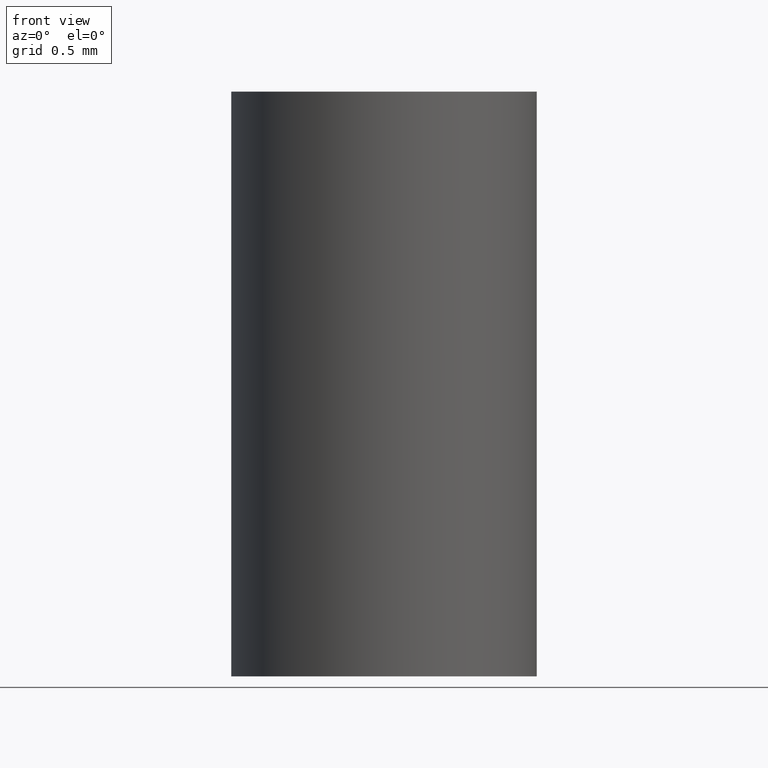
[diagram: clean part render]
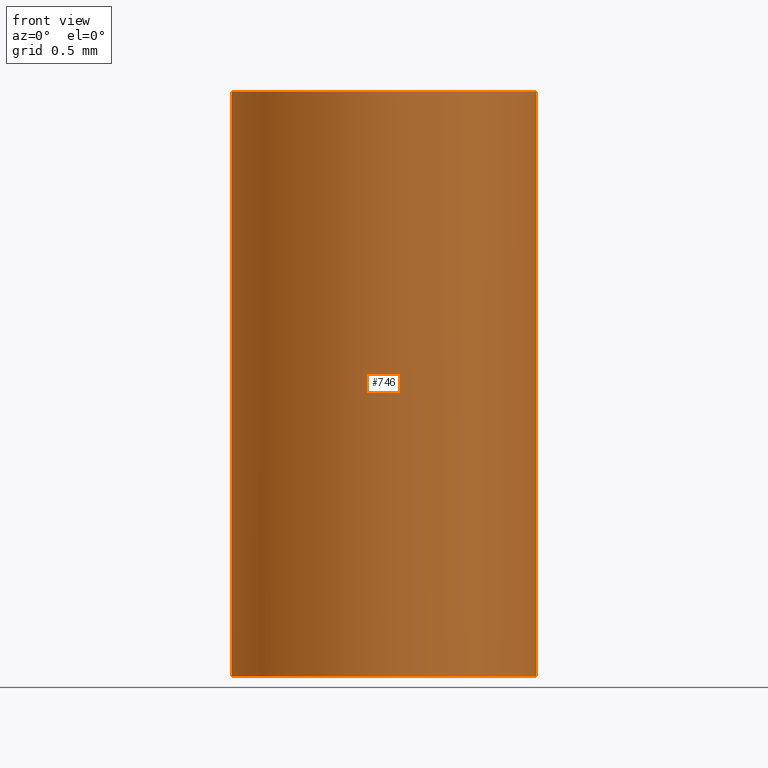
[diagram: same view with one face highlighted and labeled with its STEP entity id]
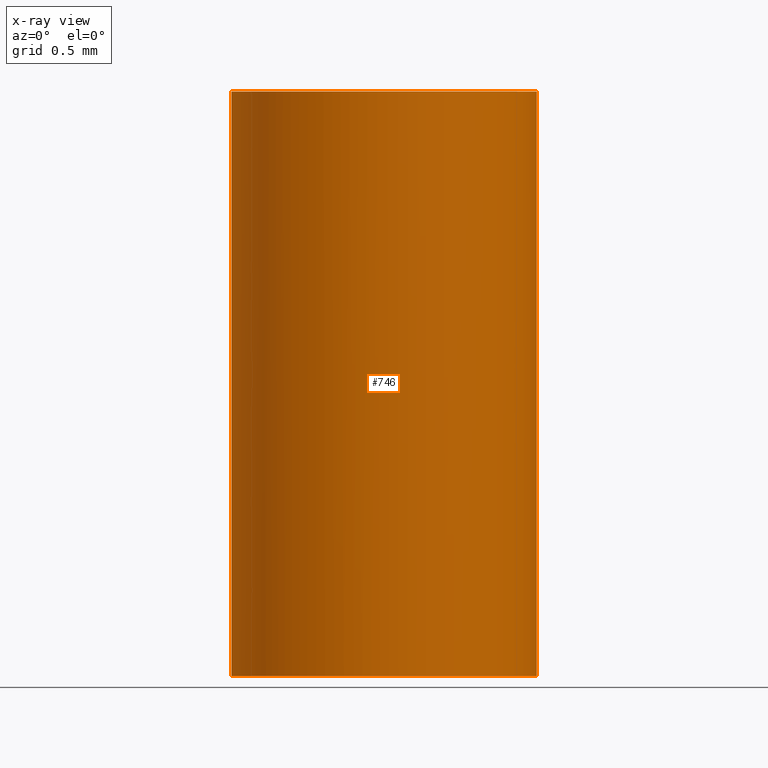
[diagram: x-ray of the same camera — body ghosted, the highlighted face saturated]
A machine part, front view. The second image highlights one B-rep face of the part: STEP entity #746.
The next image is the same camera in x-ray: the body ghosted, the highlighted face saturated — about 0% of this face is hidden behind the body in this view.
In plain terms, the highlighted face is a freeform B-spline surface patch.
Its self-contained STEP definition (entity closure, byte-faithful):
#1 = CARTESIAN_POINT ( 'NONE',  ( 0.7583970038580116800, 0.4609754946678218400, 0.0000000000000000000 ) ) ;
#3 = EDGE_LOOP ( 'NONE', ( #492, #619, #882, #572 ) ) ;
#7 = CARTESIAN_POINT ( 'NONE',  ( -0.6763096916565426400, 0.5049967104586130500, 0.0000000000000000000 ) ) ;
#10 = CARTESIAN_POINT ( 'NONE',  ( -0.7026761214641372700, -0.6447131296553072500, 0.0000000000000000000 ) ) ;
#13 = CARTESIAN_POINT ( 'NONE',  ( -1.097127492715755300, -0.1587014415089026400, 0.0000000000000000000 ) ) ;
#17 = CARTESIAN_POINT ( 'NONE',  ( -0.7716038316118147800, -0.2815893733691927600, 0.0000000000000000000 ) ) ;
#26 = CARTESIAN_POINT ( 'NONE',  ( 0.3164986882359646100, -1.021436466767802600, 0.0000000000000000000 ) ) ;
#33 = CARTESIAN_POINT ( 'NONE',  ( 0.8877360307185315800, -0.1708958883058093700, 4.000000000000000000 ) ) ;
#36 = CARTESIAN_POINT ( 'NONE',  ( 0.8560203802046704200, 0.2565611475397826500, 4.000000000000000000 ) ) ;
#39 = CARTESIAN_POINT ( 'NONE',  ( 0.1515911142503182100, 0.9979109798834902000, 4.000000000000000000 ) ) ;
#43 = CARTESIAN_POINT ( 'NONE',  ( -0.8479840170974072300, -0.4495258677046951600, 4.000000000000000000 ) ) ;
#47 = CARTESIAN_POINT ( 'NONE',  ( -0.3292590890496382400, -0.5555671395518986300, 4.000000000000000000 ) ) ;
#49 = CARTESIAN_POINT ( 'NONE',  ( 0.5540426067905855900, -0.2980894388483326700, 0.0000000000000000000 ) ) ;
#52 = CARTESIAN_POINT ( 'NONE',  ( 0.7463509298310556600, 0.1156326890998082600, 4.000000000000000000 ) ) ;
#55 = CARTESIAN_POINT ( 'NONE',  ( -0.3701418553615222800, 0.7701081889398881900, 0.0000000000000000000 ) ) ;
#60 = CARTESIAN_POINT ( 'NONE',  ( -0.9701425294174590400, -0.005891124174933593000, 4.000000000000000000 ) ) ;
#61 = VERTEX_POINT ( 'NONE', #518 ) ;
#63 = CARTESIAN_POINT ( 'NONE',  ( 0.7583970038580116800, 0.4609754946678218400, 0.0000000000000000000 ) ) ;
#66 = CARTESIAN_POINT ( 'NONE',  ( -0.7350859085189543900, 0.6581861294657855900, 4.000000000000000000 ) ) ;
#68 = CARTESIAN_POINT ( 'NONE',  ( 0.7953061832709268400, 0.6480272480098289200, 4.000000000000000000 ) ) ;
#72 = CARTESIAN_POINT ( 'NONE',  ( 0.7953061832709268400, 0.6480272480098289200, 0.0000000000000000000 ) ) ;
#76 = CARTESIAN_POINT ( 'NONE',  ( 0.8560203802046704200, 0.2565611475397826500, 0.0000000000000000000 ) ) ;
#79 = CARTESIAN_POINT ( 'NONE',  ( 0.2476394591388616500, 0.8350266087884887800, 0.0000000000000000000 ) ) ;
#83 = CARTESIAN_POINT ( 'NONE',  ( -0.9701425294174590400, -0.005891124174933593000, 0.0000000000000000000 ) ) ;
#89 = CARTESIAN_POINT ( 'NONE',  ( -0.5465353381415623000, -0.5991630616646980200, 0.0000000000000000000 ) ) ;
#93 = CARTESIAN_POINT ( 'NONE',  ( -1.055736966780583600, 0.3707400833624573400, 0.0000000000000000000 ) ) ;
#96 = CARTESIAN_POINT ( 'NONE',  ( -1.015980769229922100, -0.4278905353636624500, 0.0000000000000000000 ) ) ;
#104 = CARTESIAN_POINT ( 'NONE',  ( -8.792005455195680700E-017, 1.113750000000000200, 4.000000000000000000 ) ) ;
#107 = CARTESIAN_POINT ( 'NONE',  ( 1.040978732487718900, -0.05482816004497868100, 0.0000000000000000000 ) ) ;
#109 = CARTESIAN_POINT ( 'NONE',  ( -0.8237883917574385700, -0.07846189655459263900, 4.000000000000000000 ) ) ;
#113 = CARTESIAN_POINT ( 'NONE',  ( -0.3292590890496430700, -0.5555671395518961800, 0.0000000000000000000 ) ) ;
#115 = CARTESIAN_POINT ( 'NONE',  ( -0.08614373521911816700, -0.9331302622349195700, 4.000000000000000000 ) ) ;
#120 = CARTESIAN_POINT ( 'NONE',  ( 0.8214754130370506300, -0.3919078862407278100, 4.000000000000000000 ) ) ;
#122 = CARTESIAN_POINT ( 'NONE',  ( -0.6763096916565426400, 0.5049967104586130500, 4.000000000000000000 ) ) ;
#128 = CARTESIAN_POINT ( 'NONE',  ( -0.3641254467813354000, 0.6116123470259144900, 4.000000000000000000 ) ) ;
#131 = CARTESIAN_POINT ( 'NONE',  ( -0.6885090739393742200, 0.02926466359169566400, 0.0000000000000000000 ) ) ;
#134 = CARTESIAN_POINT ( 'NONE',  ( 0.6444524397320201500, -0.4246592132029523600, 4.000000000000000000 ) ) ;
#136 = CARTESIAN_POINT ( 'NONE',  ( -0.3701418553615222800, 0.7701081889398881900, 4.000000000000000000 ) ) ;
#139 = CARTESIAN_POINT ( 'NONE',  ( 0.6444524397320201500, -0.4246592132029523600, 0.0000000000000000000 ) ) ;
#141 = CARTESIAN_POINT ( 'NONE',  ( 0.7461275854452953400, -0.7514483640741634900, 4.000000000000000000 ) ) ;
#143 = CARTESIAN_POINT ( 'NONE',  ( 0.1515911142503182100, 0.9979109798834902000, 0.0000000000000000000 ) ) ;
#146 = CARTESIAN_POINT ( 'NONE',  ( 0.04893478115581038200, -1.074370110122631700, 4.000000000000000000 ) ) ;
#148 = CARTESIAN_POINT ( 'NONE',  ( -0.9701425294174590400, -0.005891124174933593000, 0.0000000000000000000 ) ) ;
#151 = CARTESIAN_POINT ( 'NONE',  ( 0.7461275854452953400, -0.7514483640741634900, 0.0000000000000000000 ) ) ;
#154 = CARTESIAN_POINT ( 'NONE',  ( -1.055736966780583600, 0.3707400833624573400, 4.000000000000000000 ) ) ;
#158 = CARTESIAN_POINT ( 'NONE',  ( 0.8877360307185315800, -0.1708958883058093700, 0.0000000000000000000 ) ) ;
#166 = CARTESIAN_POINT ( 'NONE',  ( 0.1515911142503182100, 0.9979109798834902000, 0.0000000000000000000 ) ) ;
#175 = CARTESIAN_POINT ( 'NONE',  ( -0.5411376863129864200, 0.9982318544924089200, 0.0000000000000000000 ) ) ;
#183 = CARTESIAN_POINT ( 'NONE',  ( 0.04893478115581038200, -1.074370110122631700, 0.0000000000000000000 ) ) ;
#190 = CARTESIAN_POINT ( 'NONE',  ( -0.04014132327632603100, 0.7210765924086439700, 4.000000000000000000 ) ) ;
#194 = CARTESIAN_POINT ( 'NONE',  ( -0.9462143018426538700, 0.2404875558488977200, 4.000000000000000000 ) ) ;
#197 = CARTESIAN_POINT ( 'NONE',  ( -0.5487157140505032300, 0.8274169232728193500, 4.000000000000000000 ) ) ;
#199 = CARTESIAN_POINT ( 'NONE',  ( 0.5206215739320180200, -0.5780289262034081800, 0.0000000000000000000 ) ) ;
#201 = CARTESIAN_POINT ( 'NONE',  ( -0.5022434138371598700, 0.4956916835127473900, 4.000000000000000000 ) ) ;
#206 = CARTESIAN_POINT ( 'NONE',  ( -0.2551459781043309800, -0.6110777091375364500, 0.0000000000000000000 ) ) ;
#209 = CARTESIAN_POINT ( 'NONE',  ( -0.1651252646156073900, 0.8445884064315375400, 0.0000000000000000000 ) ) ;
#212 = CARTESIAN_POINT ( 'NONE',  ( -0.7026761214641372700, -0.6447131296553072500, 0.0000000000000000000 ) ) ;
#215 = CARTESIAN_POINT ( 'NONE',  ( -0.6957925316497993700, -0.8416470683276798800, 4.000000000000000000 ) ) ;
#216 = CARTESIAN_POINT ( 'NONE',  ( 0.7583970038580116800, 0.4609754946678218400, 4.000000000000000000 ) ) ;
#218 = CARTESIAN_POINT ( 'NONE',  ( 0.9062453287998693000, -0.5358558011870280200, 4.000000000000000000 ) ) ;
#220 = CARTESIAN_POINT ( 'NONE',  ( 0.4534072424004326200, 0.7508287515906255600, 0.0000000000000000000 ) ) ;
#225 = CARTESIAN_POINT ( 'NONE',  ( -0.002504007415632577800, -0.7944502543498097600, 0.0000000000000000000 ) ) ;
#227 = CARTESIAN_POINT ( 'NONE',  ( 0.7463509298310556600, 0.1156326890998082600, 0.0000000000000000000 ) ) ;
#230 = CARTESIAN_POINT ( 'NONE',  ( 0.8214754130370506300, -0.3919078862407278100, 0.0000000000000000000 ) ) ;
#234 = CARTESIAN_POINT ( 'NONE',  ( -0.9462143018426538700, 0.2404875558488977200, 0.0000000000000000000 ) ) ;
#237 = LINE ( 'NONE', #842, #848 ) ;
#239 = CARTESIAN_POINT ( 'NONE',  ( -0.2733553764012233700, 1.108398437500000000, 0.0000000000000000000 ) ) ;
#251 = CARTESIAN_POINT ( 'NONE',  ( 0.7583970038580116800, 0.4609754946678218400, 4.000000000000000000 ) ) ;
#255 = CARTESIAN_POINT ( 'NONE',  ( -0.002504007415632577800, -0.7944502543498097600, 4.000000000000000000 ) ) ;
#259 = CARTESIAN_POINT ( 'NONE',  ( 0.6053515625000001100, -0.1472621556370214400, 0.0000000000000000000 ) ) ;
#262 = CARTESIAN_POINT ( 'NONE',  ( -0.6647365660968040900, 0.2037691985282647500, 4.000000000000000000 ) ) ;
#265 = CARTESIAN_POINT ( 'NONE',  ( 0.4649290388188955200, 0.5740682996103484400, 4.000000000000000000 ) ) ;
#267 = CARTESIAN_POINT ( 'NONE',  ( 0.7574919616994796300, -0.07696451459410308400, 0.0000000000000000000 ) ) ;
#271 = CARTESIAN_POINT ( 'NONE',  ( 0.5996260640963244600, 0.4418892364270827800, 4.000000000000000000 ) ) ;
#274 = CARTESIAN_POINT ( 'NONE',  ( -0.04014132327632603100, 0.7210765924086439700, 0.0000000000000000000 ) ) ;
#277 = CARTESIAN_POINT ( 'NONE',  ( 0.1964170562244020600, -0.7634559969889722600, 4.000000000000000000 ) ) ;
#281 = CARTESIAN_POINT ( 'NONE',  ( -0.09191382790632680900, -0.6495980602815881700, 4.000000000000000000 ) ) ;
#284 = CARTESIAN_POINT ( 'NONE',  ( 0.4534072424004326200, 0.7508287515906255600, 4.000000000000000000 ) ) ;
#286 = CARTESIAN_POINT ( 'NONE',  ( -0.3207884171766604600, -0.8870097967582880600, 4.000000000000000000 ) ) ;
#288 = CARTESIAN_POINT ( 'NONE',  ( 0.2476394591388616500, 0.8350266087884887800, 4.000000000000000000 ) ) ;
#291 = CARTESIAN_POINT ( 'NONE',  ( 0.9062453287998693000, -0.5358558011870280200, 0.0000000000000000000 ) ) ;
#294 = VERTEX_POINT ( 'NONE', #601 ) ;
#297 = CARTESIAN_POINT ( 'NONE',  ( 0.8214754130370506300, -0.3919078862407278100, 4.000000000000000000 ) ) ;
#299 = CARTESIAN_POINT ( 'NONE',  ( 0.3164986882359646100, -1.021436466767802600, 4.000000000000000000 ) ) ;
#300 = CARTESIAN_POINT ( 'NONE',  ( 0.6444524397320201500, -0.4246592132029523600, 0.0000000000000000000 ) ) ;
#303 = CARTESIAN_POINT ( 'NONE',  ( -0.5170757843521486300, -0.4301428041326466600, 0.0000000000000000000 ) ) ;
#308 = CARTESIAN_POINT ( 'NONE',  ( 0.5529130164652292800, -0.7360235482121024700, 0.0000000000000000000 ) ) ;
#310 = VERTEX_POINT ( 'NONE', #737 ) ;
#313 = CARTESIAN_POINT ( 'NONE',  ( 0.3517373573016431300, -0.8573565002161743800, 0.0000000000000000000 ) ) ;
#317 = CARTESIAN_POINT ( 'NONE',  ( -0.5411376863129864200, 0.9982318544924089200, 0.0000000000000000000 ) ) ;
#323 = CARTESIAN_POINT ( 'NONE',  ( 1.015144248699343600, 0.2082520348093352400, 0.0000000000000000000 ) ) ;
#329 = CARTESIAN_POINT ( 'NONE',  ( -8.792005455195680700E-017, 1.113750000000000200, 0.0000000000000000000 ) ) ;
#331 = CARTESIAN_POINT ( 'NONE',  ( -0.5022434138371598700, 0.4956916835127473900, 4.000000000000000000 ) ) ;
#335 = CARTESIAN_POINT ( 'NONE',  ( 0.7953061832709268400, 0.6480272480098289200, 0.0000000000000000000 ) ) ;
#337 = DIRECTION ( 'NONE',  ( 0.0000000000000000000, 0.0000000000000000000, 1.000000000000000000 ) ) ;
#341 = CARTESIAN_POINT ( 'NONE',  ( -0.3207884171766604600, -0.8870097967582880600, 4.000000000000000000 ) ) ;
#343 = CARTESIAN_POINT ( 'NONE',  ( -0.5465353381415623000, -0.5991630616646980200, 4.000000000000000000 ) ) ;
#346 = CARTESIAN_POINT ( 'NONE',  ( -0.1043505306542801300, 0.9977809587104833300, 4.000000000000000000 ) ) ;
#350 = CARTESIAN_POINT ( 'NONE',  ( 0.7463509298310556600, 0.1156326890998082600, 0.0000000000000000000 ) ) ;
#353 = CARTESIAN_POINT ( 'NONE',  ( 0.3588902211760598400, -0.5293446452838803700, 0.0000000000000000000 ) ) ;
#355 = CARTESIAN_POINT ( 'NONE',  ( 0.2158289345323387000, -0.6085331308910280100, 4.000000000000000000 ) ) ;
#359 = CARTESIAN_POINT ( 'NONE',  ( -0.002504007415632577800, -0.7944502543498097600, 0.0000000000000000000 ) ) ;
#362 = CARTESIAN_POINT ( 'NONE',  ( -0.9331965472929604200, 0.6284452996950649100, 4.000000000000000000 ) ) ;
#363 = CARTESIAN_POINT ( 'NONE',  ( 0.1442367610942328100, 0.7139045705999829100, 0.0000000000000000000 ) ) ;
#365 = CARTESIAN_POINT ( 'NONE',  ( 0.5529130164652292800, -0.7360235482121024700, 0.0000000000000000000 ) ) ;
#370 = CARTESIAN_POINT ( 'NONE',  ( -0.3207884171766604600, -0.8870097967582880600, 0.0000000000000000000 ) ) ;
#372 = CARTESIAN_POINT ( 'NONE',  ( 0.04893478115581038200, -1.074370110122631700, 0.0000000000000000000 ) ) ;
#375 = CARTESIAN_POINT ( 'NONE',  ( -0.8479840170974072300, -0.4495258677046951600, 0.0000000000000000000 ) ) ;
#377 = CARTESIAN_POINT ( 'NONE',  ( -0.3701418553615222800, 0.7701081889398881900, 0.0000000000000000000 ) ) ;
#381 = CARTESIAN_POINT ( 'NONE',  ( 0.5206215739320180200, -0.5780289262034081800, 0.0000000000000000000 ) ) ;
#385 = CARTESIAN_POINT ( 'NONE',  ( -0.08614373521911816700, -0.9331302622349195700, 0.0000000000000000000 ) ) ;
#388 = CARTESIAN_POINT ( 'NONE',  ( -0.5487157140505032300, 0.8274169232728193500, 0.0000000000000000000 ) ) ;
#392 = CARTESIAN_POINT ( 'NONE',  ( -0.5411376863129864200, 0.9982318544924089200, 4.000000000000000000 ) ) ;
#400 = CARTESIAN_POINT ( 'NONE',  ( -0.2733553764012233700, 1.108398437500000000, 0.0000000000000000000 ) ) ;
#407 = CARTESIAN_POINT ( 'NONE',  ( -0.7350859085189543900, 0.6581861294657855900, 4.000000000000000000 ) ) ;
#410 = CARTESIAN_POINT ( 'NONE',  ( -0.3748935673231771300, -0.7122053194596226200, 4.000000000000000000 ) ) ;
#414 = CARTESIAN_POINT ( 'NONE',  ( -0.7026761214641372700, -0.6447131296553072500, 4.000000000000000000 ) ) ;
#420 = CARTESIAN_POINT ( 'NONE',  ( -0.5170757843521486300, -0.4301428041326466600, 4.000000000000000000 ) ) ;
#422 = CARTESIAN_POINT ( 'NONE',  ( -0.3748935673231771300, -0.7122053194596226200, 4.000000000000000000 ) ) ;
#425 = CARTESIAN_POINT ( 'NONE',  ( -0.5170757843521486300, -0.4301428041326466600, 4.000000000000000000 ) ) ;
#428 = CARTESIAN_POINT ( 'NONE',  ( -0.3641254467813354000, 0.6116123470259144900, 0.0000000000000000000 ) ) ;
#431 = CARTESIAN_POINT ( 'NONE',  ( -0.3748935673231771300, -0.7122053194596226200, 0.0000000000000000000 ) ) ;
#433 = CARTESIAN_POINT ( 'NONE',  ( -0.8237883917574385700, -0.07846189655459263900, 0.0000000000000000000 ) ) ;
#435 = CARTESIAN_POINT ( 'NONE',  ( -1.055736966780583600, 0.3707400833624573400, 4.000000000000000000 ) ) ;
#438 = CARTESIAN_POINT ( 'NONE',  ( 0.04893478115581038200, -1.074370110122631700, 4.000000000000000000 ) ) ;
#439 = CARTESIAN_POINT ( 'NONE',  ( -0.08614373521911816700, -0.9331302622349195700, 4.000000000000000000 ) ) ;
#440 = CARTESIAN_POINT ( 'NONE',  ( 1.040978732487718900, -0.05482816004497868100, 0.0000000000000000000 ) ) ;
#444 = CARTESIAN_POINT ( 'NONE',  ( 0.8560203802046704200, 0.2565611475397826500, 0.0000000000000000000 ) ) ;
#447 = CARTESIAN_POINT ( 'NONE',  ( 0.6025344246541302100, 0.8227091238715674700, 4.000000000000000000 ) ) ;
#450 = CARTESIAN_POINT ( 'NONE',  ( -0.1651252646156073900, 0.8445884064315375400, 0.0000000000000000000 ) ) ;
#457 = CARTESIAN_POINT ( 'NONE',  ( -0.3207884171766604600, -0.8870097967582880600, 0.0000000000000000000 ) ) ;
#461 = CARTESIAN_POINT ( 'NONE',  ( 0.4649290388188955200, 0.5740682996103484400, 0.0000000000000000000 ) ) ;
#464 = CARTESIAN_POINT ( 'NONE',  ( -0.6144028719962922900, -0.2884299632449965300, 0.0000000000000000000 ) ) ;
#469 = CARTESIAN_POINT ( 'NONE',  ( 0.7461275854452953400, -0.7514483640741634900, 0.0000000000000000000 ) ) ;
#473 = CARTESIAN_POINT ( 'NONE',  ( 0.2476394591388616500, 0.8350266087884887800, 4.000000000000000000 ) ) ;
#476 = CARTESIAN_POINT ( 'NONE',  ( 1.040978732487718900, -0.05482816004497868100, 4.000000000000000000 ) ) ;
#481 = CARTESIAN_POINT ( 'NONE',  ( 0.6025344246541302100, 0.8227091238715674700, 4.000000000000000000 ) ) ;
#483 = CARTESIAN_POINT ( 'NONE',  ( -0.3292590890496430700, -0.5555671395518961800, 0.0000000000000000000 ) ) ;
#485 = CARTESIAN_POINT ( 'NONE',  ( 0.1442367610942328100, 0.7139045705999829100, 4.000000000000000000 ) ) ;
#488 = CARTESIAN_POINT ( 'NONE',  ( -0.6144028719962922900, -0.2884299632449965300, 4.000000000000000000 ) ) ;
#491 = CARTESIAN_POINT ( 'NONE',  ( -0.6763096916565426400, 0.5049967104586130500, 4.000000000000000000 ) ) ;
#492 = ORIENTED_EDGE ( 'NONE', *, *, #865, .T. ) ;
#495 = B_SPLINE_CURVE_WITH_KNOTS ( 'NONE', 3,
 ( #104, #549, #796, #362, #435, #946, #942, #215, #875, #438, #299, #828, #851, #476, #633, #844, #481, #39, #346, #197, #407, #194, #557, #43, #414, #341, #115, #560, #765, #120, #33, #36, #251, #912, #473, #853, #564, #122, #705, #109, #920, #343, #410, #255, #637, #917, #630, #770, #550, #700, #265, #485, #190, #554, #331, #262, #622, #488, #420, #783, #923, #47 ),
 .UNSPECIFIED., .F., .F.,
 ( 4, 2, 2, 2, 2, 2, 2, 2, 2, 2, 2, 2, 2, 2, 2, 2, 2, 2, 2, 2, 2, 2, 2, 2, 2, 2, 2, 2, 2, 2, 4 ),
 ( 0.0000000000000000000, 0.03124999999999988900, 0.06249999999999988900, 0.09374999999999987500, 0.1250000000000000000, 0.1562500000000000000, 0.1875000000000000000, 0.2187500000000000000, 0.2500000000000000000, 0.2812500000000000000, 0.3125000000000000000, 0.3437500000000000000, 0.3750000000000001100, 0.4062500000000001100, 0.4375000000000001100, 0.4687500000000001100, 0.5000000000000001100, 0.5312500000000001100, 0.5625000000000002200, 0.5937500000000001100, 0.6250000000000000000, 0.6562500000000000000, 0.6875000000000000000, 0.7187499999999998900, 0.7500000000000000000, 0.7812500000000000000, 0.8124999999999998900, 0.8437500000000000000, 0.8750000000000000000, 0.9062500000000000000, 0.9106297482307727000 ),
 .UNSPECIFIED. ) ;
#497 = CARTESIAN_POINT ( 'NONE',  ( -0.2551459781043309800, -0.6110777091375364500, 4.000000000000000000 ) ) ;
#501 = CARTESIAN_POINT ( 'NONE',  ( 0.5996260640963244600, 0.4418892364270827800, 0.0000000000000000000 ) ) ;
#503 = CARTESIAN_POINT ( 'NONE',  ( -0.6763096916565426400, 0.5049967104586130500, 0.0000000000000000000 ) ) ;
#505 = CARTESIAN_POINT ( 'NONE',  ( -0.6647365660968040900, 0.2037691985282647500, 0.0000000000000000000 ) ) ;
#507 = CARTESIAN_POINT ( 'NONE',  ( 0.6025344246541302100, 0.8227091238715674700, 0.0000000000000000000 ) ) ;
#511 = CARTESIAN_POINT ( 'NONE',  ( -0.4584415602127839800, -0.9843594925237751900, 0.0000000000000000000 ) ) ;
#514 = CARTESIAN_POINT ( 'NONE',  ( -0.1043505306542801300, 0.9977809587104833300, 0.0000000000000000000 ) ) ;
#517 = CARTESIAN_POINT ( 'NONE',  ( -0.8479840170974072300, -0.4495258677046951600, 4.000000000000000000 ) ) ;
#518 = CARTESIAN_POINT ( 'NONE',  ( -0.3292590890496382400, -0.5555671395518986300, 4.000000000000000000 ) ) ;
#521 = CARTESIAN_POINT ( 'NONE',  ( -0.3487670982820950700, -0.5449482607665888700, 0.0000000000000000000 ) ) ;
#524 = CARTESIAN_POINT ( 'NONE',  ( -0.9331965472929604200, 0.6284452996950649100, 4.000000000000000000 ) ) ;
#528 = CARTESIAN_POINT ( 'NONE',  ( -0.8479840170974072300, -0.4495258677046951600, 0.0000000000000000000 ) ) ;
#535 = CARTESIAN_POINT ( 'NONE',  ( 0.4534072424004326200, 0.7508287515906255600, 0.0000000000000000000 ) ) ;
#543 = CARTESIAN_POINT ( 'NONE',  ( -0.9331965472929604200, 0.6284452996950649100, 0.0000000000000000000 ) ) ;
#546 = CARTESIAN_POINT ( 'NONE',  ( -0.6957925316497993700, -0.8416470683276798800, 0.0000000000000000000 ) ) ;
#549 = CARTESIAN_POINT ( 'NONE',  ( -0.2733553764012233700, 1.108398437500000000, 4.000000000000000000 ) ) ;
#550 = CARTESIAN_POINT ( 'NONE',  ( 0.7463509298310556600, 0.1156326890998082600, 4.000000000000000000 ) ) ;
#554 = CARTESIAN_POINT ( 'NONE',  ( -0.3641254467813354000, 0.6116123470259144900, 4.000000000000000000 ) ) ;
#557 = CARTESIAN_POINT ( 'NONE',  ( -0.9701425294174590400, -0.005891124174933593000, 4.000000000000000000 ) ) ;
#560 = CARTESIAN_POINT ( 'NONE',  ( 0.3517373573016431300, -0.8573565002161743800, 4.000000000000000000 ) ) ;
#564 = CARTESIAN_POINT ( 'NONE',  ( -0.3701418553615222800, 0.7701081889398881900, 4.000000000000000000 ) ) ;
#567 = CARTESIAN_POINT ( 'NONE',  ( 0.5540426067905855900, -0.2980894388483326700, 4.000000000000000000 ) ) ;
#571 = CARTESIAN_POINT ( 'NONE',  ( 0.7574919616994796300, -0.07696451459410308400, 4.000000000000000000 ) ) ;
#572 = ORIENTED_EDGE ( 'NONE', *, *, #772, .F. ) ;
#575 = CARTESIAN_POINT ( 'NONE',  ( -0.6144028719962922900, -0.2884299632449965300, 4.000000000000000000 ) ) ;
#577 = CARTESIAN_POINT ( 'NONE',  ( -0.04014132327632603100, 0.7210765924086439700, 4.000000000000000000 ) ) ;
#582 = CARTESIAN_POINT ( 'NONE',  ( -0.9462143018426538700, 0.2404875558488977200, 0.0000000000000000000 ) ) ;
#585 = CARTESIAN_POINT ( 'NONE',  ( -0.4584415602127839800, -0.9843594925237751900, 4.000000000000000000 ) ) ;
#586 = CARTESIAN_POINT ( 'NONE',  ( 0.8877360307185315800, -0.1708958883058093700, 0.0000000000000000000 ) ) ;
#590 = CARTESIAN_POINT ( 'NONE',  ( 1.015144248699343600, 0.2082520348093352400, 4.000000000000000000 ) ) ;
#595 = CARTESIAN_POINT ( 'NONE',  ( 0.7574919616994796300, -0.07696451459410308400, 0.0000000000000000000 ) ) ;
#598 = CARTESIAN_POINT ( 'NONE',  ( -1.015980769229922100, -0.4278905353636624500, 0.0000000000000000000 ) ) ;
#601 = CARTESIAN_POINT ( 'NONE',  ( -0.3292590890496430700, -0.5555671395518961800, 0.0000000000000000000 ) ) ;
#602 = CARTESIAN_POINT ( 'NONE',  ( -0.3677558955402303600, -0.5332894459163755000, 0.0000000000000000000 ) ) ;
#607 = CARTESIAN_POINT ( 'NONE',  ( -0.1043505306542801300, 0.9977809587104833300, 0.0000000000000000000 ) ) ;
#611 = CARTESIAN_POINT ( 'NONE',  ( -0.9331965472929604200, 0.6284452996950649100, 0.0000000000000000000 ) ) ;
#619 = ORIENTED_EDGE ( 'NONE', *, *, #717, .F. ) ;
#622 = CARTESIAN_POINT ( 'NONE',  ( -0.6885090739393742200, 0.02926466359169566400, 4.000000000000000000 ) ) ;
#626 = CARTESIAN_POINT ( 'NONE',  ( 0.5999999999999999800, 0.0000000000000000000, 0.0000000000000000000 ) ) ;
#630 = CARTESIAN_POINT ( 'NONE',  ( 0.6444524397320201500, -0.4246592132029523600, 4.000000000000000000 ) ) ;
#633 = CARTESIAN_POINT ( 'NONE',  ( 1.015144248699343600, 0.2082520348093352400, 4.000000000000000000 ) ) ;
#637 = CARTESIAN_POINT ( 'NONE',  ( 0.1964170562244020600, -0.7634559969889722600, 4.000000000000000000 ) ) ;
#640 = CARTESIAN_POINT ( 'NONE',  ( -0.09191382790632680900, -0.6495980602815881700, 0.0000000000000000000 ) ) ;
#642 = CARTESIAN_POINT ( 'NONE',  ( 0.6053515625000001100, -0.1472621556370214400, 4.000000000000000000 ) ) ;
#645 = CARTESIAN_POINT ( 'NONE',  ( 0.1964170562244020600, -0.7634559969889722600, 0.0000000000000000000 ) ) ;
#648 = CARTESIAN_POINT ( 'NONE',  ( -0.5465353381415623000, -0.5991630616646980200, 0.0000000000000000000 ) ) ;
#651 = CARTESIAN_POINT ( 'NONE',  ( -0.7761273336957539300, 0.3157869756678219900, 4.000000000000000000 ) ) ;
#654 = CARTESIAN_POINT ( 'NONE',  ( -0.6957925316497993700, -0.8416470683276798800, 0.0000000000000000000 ) ) ;
#655 = CARTESIAN_POINT ( 'NONE',  ( 1.040978732487718900, -0.05482816004497868100, 4.000000000000000000 ) ) ;
#660 = FACE_OUTER_BOUND ( 'NONE', #3, .T. ) ;
#661 = CARTESIAN_POINT ( 'NONE',  ( -0.9462143018426538700, 0.2404875558488977200, 4.000000000000000000 ) ) ;
#664 = CARTESIAN_POINT ( 'NONE',  ( -0.3641254467813354000, 0.6116123470259144900, 0.0000000000000000000 ) ) ;
#667 = CARTESIAN_POINT ( 'NONE',  ( -8.792005455195680700E-017, 1.113750000000000200, 4.000000000000000000 ) ) ;
#669 = CARTESIAN_POINT ( 'NONE',  ( -0.04014132327632603100, 0.7210765924086439700, 0.0000000000000000000 ) ) ;
#674 = CARTESIAN_POINT ( 'NONE',  ( -0.6885090739393742200, 0.02926466359169566400, 0.0000000000000000000 ) ) ;
#677 = CARTESIAN_POINT ( 'NONE',  ( -0.2733553764012233700, 1.108398437500000000, 4.000000000000000000 ) ) ;
#680 = CARTESIAN_POINT ( 'NONE',  ( 0.9062453287998693000, -0.5358558011870280200, 0.0000000000000000000 ) ) ;
#700 = CARTESIAN_POINT ( 'NONE',  ( 0.5996260640963244600, 0.4418892364270827800, 4.000000000000000000 ) ) ;
#705 = CARTESIAN_POINT ( 'NONE',  ( -0.7761273336957539300, 0.3157869756678219900, 4.000000000000000000 ) ) ;
#710 = CARTESIAN_POINT ( 'NONE',  ( -0.5465353381415623000, -0.5991630616646980200, 4.000000000000000000 ) ) ;
#713 = CARTESIAN_POINT ( 'NONE',  ( 0.3588902211760598400, -0.5293446452838803700, 4.000000000000000000 ) ) ;
#717 = EDGE_CURVE ( 'NONE', #310, #61, #495, .T. ) ;
#718 = CARTESIAN_POINT ( 'NONE',  ( -0.5022434138371598700, 0.4956916835127473900, 0.0000000000000000000 ) ) ;
#722 = CARTESIAN_POINT ( 'NONE',  ( -0.1651252646156073900, 0.8445884064315375400, 4.000000000000000000 ) ) ;
#723 = EDGE_CURVE ( 'NONE', #925, #310, #237, .T. ) ;
#725 = CARTESIAN_POINT ( 'NONE',  ( 0.1515911142503182100, 0.9979109798834902000, 4.000000000000000000 ) ) ;
#728 = CARTESIAN_POINT ( 'NONE',  ( 0.2476394591388616500, 0.8350266087884887800, 0.0000000000000000000 ) ) ;
#732 = CARTESIAN_POINT ( 'NONE',  ( 0.5529130164652292800, -0.7360235482121024700, 4.000000000000000000 ) ) ;
#737 = CARTESIAN_POINT ( 'NONE',  ( -8.792005455195680700E-017, 1.113750000000000200, 4.000000000000000000 ) ) ;
#738 = CARTESIAN_POINT ( 'NONE',  ( 0.1442367610942328100, 0.7139045705999829100, 0.0000000000000000000 ) ) ;
#741 = B_SPLINE_SURFACE_WITH_KNOTS ( 'NONE', 3, 1, ( 
 ( #626, #776 ),
 ( #259, #642 ),
 ( #49, #567 ),
 ( #353, #713 ),
 ( #859, #355 ),
 ( #640, #281 ),
 ( #206, #497 ),
 ( #930, #425 ),
 ( #787, #575 ),
 ( #131, #862 ),
 ( #505, #797 ),
 ( #718, #201 ),
 ( #428, #128 ),
 ( #274, #577 ),
 ( #363, #793 ),
 ( #789, #932 ),
 ( #501, #271 ),
 ( #350, #52 ),
 ( #267, #571 ),
 ( #139, #134 ),
 ( #199, #856 ),
 ( #645, #277 ),
 ( #359, #866 ),
 ( #431, #422 ),
 ( #648, #710 ),
 ( #938, #940 ),
 ( #433, #870 ),
 ( #786, #651 ),
 ( #503, #491 ),
 ( #55, #136 ),
 ( #209, #722 ),
 ( #728, #288 ),
 ( #220, #284 ),
 ( #63, #216 ),
 ( #444, #811 ),
 ( #586, #803 ),
 ( #806, #297 ),
 ( #365, #732 ),
 ( #814, #957 ),
 ( #954, #439 ),
 ( #370, #286 ),
 ( #212, #872 ),
 ( #375, #517 ),
 ( #148, #60 ),
 ( #582, #661 ),
 ( #885, #66 ),
 ( #947, #943 ),
 ( #514, #881 ),
 ( #143, #725 ),
 ( #507, #447 ),
 ( #72, #68 ),
 ( #879, #590 ),
 ( #440, #655 ),
 ( #291, #218 ),
 ( #151, #141 ),
 ( #799, #951 ),
 ( #372, #146 ),
 ( #511, #585 ),
 ( #654, #834 ),
 ( #598, #896 ),
 ( #13, #742 ),
 ( #93, #154 ),
 ( #611, #524 ),
 ( #317, #392 ),
 ( #239, #677 ),
 ( #887, #667 ) ),
 .UNSPECIFIED., .F., .F., .F.,
 ( 4, 2, 2, 2, 2, 2, 2, 2, 2, 2, 2, 2, 2, 2, 2, 2, 2, 2, 2, 2, 2, 2, 2, 2, 2, 2, 2, 2, 2, 2, 2, 2, 4 ),
 ( 2, 2 ),
 ( 0.0000000000000000000, 0.03125000000000001400, 0.06250000000000002800, 0.09375000000000004200, 0.1250000000000000600, 0.1562500000000000600, 0.1875000000000000800, 0.2187500000000000600, 0.2500000000000000600, 0.2812500000000000600, 0.3125000000000000000, 0.3437500000000000000, 0.3749999999999999400, 0.4062499999999998900, 0.4374999999999998300, 0.4687499999999998900, 0.4999999999999998900, 0.5312499999999998900, 0.5624999999999998900, 0.5937499999999998900, 0.6249999999999998900, 0.6562500000000000000, 0.6875000000000000000, 0.7187500000000000000, 0.7500000000000000000, 0.7812500000000000000, 0.8125000000000000000, 0.8437500000000000000, 0.8750000000000000000, 0.9062500000000001100, 0.9375000000000001100, 0.9687500000000001100, 1.000000000000000000 ),
 ( 0.0000000000000000000, 1.000000000000000000 ),
 .UNSPECIFIED. ) ;
#742 = CARTESIAN_POINT ( 'NONE',  ( -1.097127492715755300, -0.1587014415089026400, 4.000000000000000000 ) ) ;
#746 = ADVANCED_FACE ( 'NONE', ( #660 ), #741, .F. ) ;
#747 = CARTESIAN_POINT ( 'NONE',  ( -0.5022434138371598700, 0.4956916835127473900, 0.0000000000000000000 ) ) ;
#752 = CARTESIAN_POINT ( 'NONE',  ( -0.6647365660968040900, 0.2037691985282647500, 0.0000000000000000000 ) ) ;
#755 = CARTESIAN_POINT ( 'NONE',  ( 0.6025344246541302100, 0.8227091238715674700, 0.0000000000000000000 ) ) ;
#764 = CARTESIAN_POINT ( 'NONE',  ( -1.097127492715755300, -0.1587014415089026400, 0.0000000000000000000 ) ) ;
#765 = CARTESIAN_POINT ( 'NONE',  ( 0.5529130164652292800, -0.7360235482121024700, 4.000000000000000000 ) ) ;
#770 = CARTESIAN_POINT ( 'NONE',  ( 0.7574919616994796300, -0.07696451459410308400, 4.000000000000000000 ) ) ;
#772 = EDGE_CURVE ( 'NONE', #294, #925, #807, .T. ) ;
#776 = CARTESIAN_POINT ( 'NONE',  ( 0.5999999999999999800, 0.0000000000000000000, 4.000000000000000000 ) ) ;
#781 = CARTESIAN_POINT ( 'NONE',  ( -8.792005455195680700E-017, 1.113750000000000200, 0.0000000000000000000 ) ) ;
#783 = CARTESIAN_POINT ( 'NONE',  ( -0.3677558955402315800, -0.5332894459163746200, 4.000000000000000000 ) ) ;
#786 = CARTESIAN_POINT ( 'NONE',  ( -0.7761273336957539300, 0.3157869756678219900, 0.0000000000000000000 ) ) ;
#787 = CARTESIAN_POINT ( 'NONE',  ( -0.6144028719962922900, -0.2884299632449965300, 0.0000000000000000000 ) ) ;
#789 = CARTESIAN_POINT ( 'NONE',  ( 0.4649290388188955200, 0.5740682996103484400, 0.0000000000000000000 ) ) ;
#793 = CARTESIAN_POINT ( 'NONE',  ( 0.1442367610942328100, 0.7139045705999829100, 4.000000000000000000 ) ) ;
#796 = CARTESIAN_POINT ( 'NONE',  ( -0.5411376863129864200, 0.9982318544924089200, 4.000000000000000000 ) ) ;
#797 = CARTESIAN_POINT ( 'NONE',  ( -0.6647365660968040900, 0.2037691985282647500, 4.000000000000000000 ) ) ;
#799 = CARTESIAN_POINT ( 'NONE',  ( 0.3164986882359646100, -1.021436466767802600, 0.0000000000000000000 ) ) ;
#803 = CARTESIAN_POINT ( 'NONE',  ( 0.8877360307185315800, -0.1708958883058093700, 4.000000000000000000 ) ) ;
#806 = CARTESIAN_POINT ( 'NONE',  ( 0.8214754130370506300, -0.3919078862407278100, 0.0000000000000000000 ) ) ;
#807 = B_SPLINE_CURVE_WITH_KNOTS ( 'NONE', 3,
 ( #113, #521, #602, #303, #464, #674, #752, #747, #664, #669, #738, #461, #825, #227, #595, #300, #381, #821, #225, #890, #89, #17, #894, #817, #7, #377, #450, #79, #535, #1, #76, #158, #230, #308, #313, #385, #457, #10, #528, #83, #234, #829, #388, #607, #166, #755, #335, #323, #107, #680, #469, #26, #183, #903, #546, #96, #764, #839, #543, #175, #400, #329 ),
 .UNSPECIFIED., .F., .F.,
 ( 4, 2, 2, 2, 2, 2, 2, 2, 2, 2, 2, 2, 2, 2, 2, 2, 2, 2, 2, 2, 2, 2, 2, 2, 2, 2, 2, 2, 2, 2, 4 ),
 ( 0.08937025176922704100, 0.09375000000000004200, 0.1250000000000000600, 0.1562500000000000600, 0.1875000000000001100, 0.2187500000000000600, 0.2500000000000000600, 0.2812500000000000600, 0.3125000000000000000, 0.3437500000000000000, 0.3749999999999999400, 0.4062499999999998300, 0.4374999999999998300, 0.4687499999999998900, 0.4999999999999998900, 0.5312499999999998900, 0.5624999999999998900, 0.5937499999999998900, 0.6249999999999998900, 0.6562500000000000000, 0.6875000000000000000, 0.7187500000000000000, 0.7500000000000000000, 0.7812500000000000000, 0.8125000000000000000, 0.8437500000000000000, 0.8750000000000000000, 0.9062500000000001100, 0.9375000000000001100, 0.9687500000000001100, 1.000000000000000000 ),
 .UNSPECIFIED. ) ;
#811 = CARTESIAN_POINT ( 'NONE',  ( 0.8560203802046704200, 0.2565611475397826500, 4.000000000000000000 ) ) ;
#814 = CARTESIAN_POINT ( 'NONE',  ( 0.3517373573016431300, -0.8573565002161743800, 0.0000000000000000000 ) ) ;
#817 = CARTESIAN_POINT ( 'NONE',  ( -0.7761273336957539300, 0.3157869756678219900, 0.0000000000000000000 ) ) ;
#821 = CARTESIAN_POINT ( 'NONE',  ( 0.1964170562244020600, -0.7634559969889722600, 0.0000000000000000000 ) ) ;
#825 = CARTESIAN_POINT ( 'NONE',  ( 0.5996260640963244600, 0.4418892364270827800, 0.0000000000000000000 ) ) ;
#828 = CARTESIAN_POINT ( 'NONE',  ( 0.7461275854452953400, -0.7514483640741634900, 4.000000000000000000 ) ) ;
#829 = CARTESIAN_POINT ( 'NONE',  ( -0.7350859085189543900, 0.6581861294657855900, 0.0000000000000000000 ) ) ;
#834 = CARTESIAN_POINT ( 'NONE',  ( -0.6957925316497993700, -0.8416470683276798800, 4.000000000000000000 ) ) ;
#839 = CARTESIAN_POINT ( 'NONE',  ( -1.055736966780583600, 0.3707400833624573400, 0.0000000000000000000 ) ) ;
#842 = CARTESIAN_POINT ( 'NONE',  ( -8.792005455195680700E-017, 1.113750000000000200, 2.000000000000000000 ) ) ;
#844 = CARTESIAN_POINT ( 'NONE',  ( 0.7953061832709268400, 0.6480272480098289200, 4.000000000000000000 ) ) ;
#848 = VECTOR ( 'NONE', #337, 1000.000000000000000 ) ;
#851 = CARTESIAN_POINT ( 'NONE',  ( 0.9062453287998693000, -0.5358558011870280200, 4.000000000000000000 ) ) ;
#853 = CARTESIAN_POINT ( 'NONE',  ( -0.1651252646156073900, 0.8445884064315375400, 4.000000000000000000 ) ) ;
#856 = CARTESIAN_POINT ( 'NONE',  ( 0.5206215739320180200, -0.5780289262034081800, 4.000000000000000000 ) ) ;
#859 = CARTESIAN_POINT ( 'NONE',  ( 0.2158289345323387000, -0.6085331308910280100, 0.0000000000000000000 ) ) ;
#862 = CARTESIAN_POINT ( 'NONE',  ( -0.6885090739393742200, 0.02926466359169566400, 4.000000000000000000 ) ) ;
#865 = EDGE_CURVE ( 'NONE', #294, #61, #931, .T. ) ;
#866 = CARTESIAN_POINT ( 'NONE',  ( -0.002504007415632577800, -0.7944502543498097600, 4.000000000000000000 ) ) ;
#870 = CARTESIAN_POINT ( 'NONE',  ( -0.8237883917574385700, -0.07846189655459263900, 4.000000000000000000 ) ) ;
#872 = CARTESIAN_POINT ( 'NONE',  ( -0.7026761214641372700, -0.6447131296553072500, 4.000000000000000000 ) ) ;
#875 = CARTESIAN_POINT ( 'NONE',  ( -0.4584415602127839800, -0.9843594925237751900, 4.000000000000000000 ) ) ;
#879 = CARTESIAN_POINT ( 'NONE',  ( 1.015144248699343600, 0.2082520348093352400, 0.0000000000000000000 ) ) ;
#881 = CARTESIAN_POINT ( 'NONE',  ( -0.1043505306542801300, 0.9977809587104833300, 4.000000000000000000 ) ) ;
#882 = ORIENTED_EDGE ( 'NONE', *, *, #723, .F. ) ;
#885 = CARTESIAN_POINT ( 'NONE',  ( -0.7350859085189543900, 0.6581861294657855900, 0.0000000000000000000 ) ) ;
#887 = CARTESIAN_POINT ( 'NONE',  ( -8.792005455195680700E-017, 1.113750000000000200, 0.0000000000000000000 ) ) ;
#890 = CARTESIAN_POINT ( 'NONE',  ( -0.3748935673231771300, -0.7122053194596226200, 0.0000000000000000000 ) ) ;
#894 = CARTESIAN_POINT ( 'NONE',  ( -0.8237883917574385700, -0.07846189655459263900, 0.0000000000000000000 ) ) ;
#896 = CARTESIAN_POINT ( 'NONE',  ( -1.015980769229922100, -0.4278905353636624500, 4.000000000000000000 ) ) ;
#903 = CARTESIAN_POINT ( 'NONE',  ( -0.4584415602127839800, -0.9843594925237751900, 0.0000000000000000000 ) ) ;
#912 = CARTESIAN_POINT ( 'NONE',  ( 0.4534072424004326200, 0.7508287515906255600, 4.000000000000000000 ) ) ;
#917 = CARTESIAN_POINT ( 'NONE',  ( 0.5206215739320180200, -0.5780289262034081800, 4.000000000000000000 ) ) ;
#920 = CARTESIAN_POINT ( 'NONE',  ( -0.7716038316118147800, -0.2815893733691927600, 4.000000000000000000 ) ) ;
#923 = CARTESIAN_POINT ( 'NONE',  ( -0.3487670982820977300, -0.5449482607665873100, 4.000000000000000000 ) ) ;
#925 = VERTEX_POINT ( 'NONE', #781 ) ;
#929 = CARTESIAN_POINT ( 'NONE',  ( -0.3292590890496382400, -0.5555671395518986300, 4.000000000000000000 ) ) ;
#930 = CARTESIAN_POINT ( 'NONE',  ( -0.5170757843521486300, -0.4301428041326466600, 0.0000000000000000000 ) ) ;
#931 = B_SPLINE_CURVE_WITH_KNOTS ( 'NONE', 1,
 ( #483, #929 ),
 .UNSPECIFIED., .F., .F.,
 ( 2, 2 ),
 ( 0.0000000000000000000, 1.000000000000000000 ),
 .UNSPECIFIED. ) ;
#932 = CARTESIAN_POINT ( 'NONE',  ( 0.4649290388188955200, 0.5740682996103484400, 4.000000000000000000 ) ) ;
#938 = CARTESIAN_POINT ( 'NONE',  ( -0.7716038316118147800, -0.2815893733691927600, 0.0000000000000000000 ) ) ;
#940 = CARTESIAN_POINT ( 'NONE',  ( -0.7716038316118147800, -0.2815893733691927600, 4.000000000000000000 ) ) ;
#942 = CARTESIAN_POINT ( 'NONE',  ( -1.015980769229922100, -0.4278905353636624500, 4.000000000000000000 ) ) ;
#943 = CARTESIAN_POINT ( 'NONE',  ( -0.5487157140505032300, 0.8274169232728193500, 4.000000000000000000 ) ) ;
#946 = CARTESIAN_POINT ( 'NONE',  ( -1.097127492715755300, -0.1587014415089026400, 4.000000000000000000 ) ) ;
#947 = CARTESIAN_POINT ( 'NONE',  ( -0.5487157140505032300, 0.8274169232728193500, 0.0000000000000000000 ) ) ;
#951 = CARTESIAN_POINT ( 'NONE',  ( 0.3164986882359646100, -1.021436466767802600, 4.000000000000000000 ) ) ;
#954 = CARTESIAN_POINT ( 'NONE',  ( -0.08614373521911816700, -0.9331302622349195700, 0.0000000000000000000 ) ) ;
#957 = CARTESIAN_POINT ( 'NONE',  ( 0.3517373573016431300, -0.8573565002161743800, 4.000000000000000000 ) ) ;